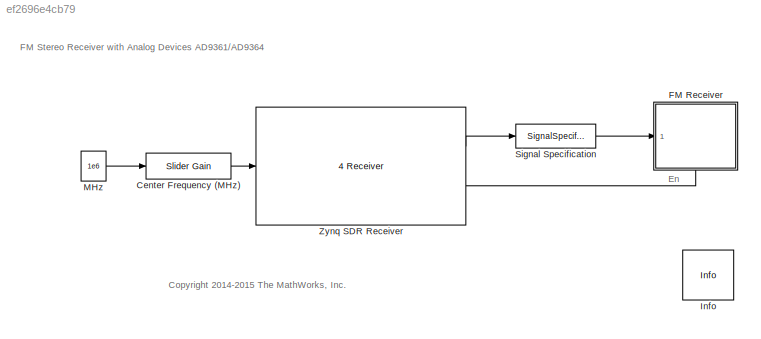
MODEL slx_ef2696e4cb79
KIND model
CONFIG AbsTol = auto
CONFIG FixedStep = auto
CONFIG InitFcn = stereoFMRxParams = getParamsFMExamplesAD9361AD9364;
CONFIG MaxStep = auto
CONFIG MinStep = auto
CONFIG PreLoadFcn = stereoFMRxParams = getParamsFMExamplesAD9361AD9364;
CONFIG RelTol = 1e-3
CONFIG SampleTimeConstraint = Unconstrained
CONFIG Solver = FixedStepDiscrete
CONFIG SolverMode = SingleTasking
CONFIG SolverName = FixedStepDiscrete
CONFIG StartTime = 0.0
CONFIG StopTime = inf
BLOCK [Reference] Center Frequency (MHz)  REF=simulink/Math
Operations/Slider
Gain
  Ports = [1, 1]
  SourceBlock = simulink/Math\nOperations/Slider\nGain
  SourceType = Slider Gain
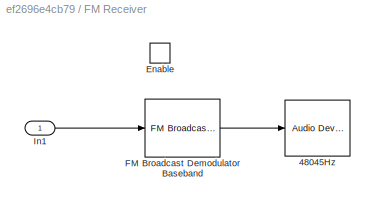
BLOCK [SubSystem] FM Receiver
  Ports = [1, 0, 1]
  RequestExecContextInheritance = off
  ShowPortLabels = none
  TreatAsAtomicUnit = on
  Variant = off
BLOCK [Reference] FM Receiver/48045Hz  REF=dspsnks4/Audio Device
Writer
  Ports = [1]
  SourceBlock = dspsnks4/Audio Device\nWriter
  SourceType = Audio Device Writer
BLOCK [EnablePort] FM Receiver/Enable
  Ports = []
BLOCK [Reference] FM Receiver/FM Broadcast Demodulator Baseband  REF=commanabbnd3/FM Broadcast
Demodulator
Baseband
  Ports = [1, 1]
  SourceBlock = commanabbnd3/FM Broadcast\nDemodulator\nBaseband
  SourceType = FM Broadcast Demodulator Baseband
BLOCK [Inport] FM Receiver/In1
  IconDisplay = Port number
BLOCK [Reference] Info  REF=sdrzblksprivate/Info
  Ports = []
  SourceBlock = sdrzblksprivate/Info
  SourceType = Info
BLOCK [Constant] MHz
  FramePeriod = -1
  SampleTime = stereoFMRxParams.RadioFrameLength/stereoFMRxParams.RadioSampleRate
  Value = 1e6
  VectorParams1D = off
BLOCK [SignalSpecification] Signal Specification
  SampleTime = stereoFMRxParams.RadioFrameLength/stereoFMRxParams.RadioSampleRate
BLOCK [Reference] Zynq SDR Receiver  REF=zc706fmc234_lib/ZC706 and 
FMCOMMS2//3//4 
Receiver
  Ports = [1, 2]
  SourceBlock = zc706fmc234_lib/ZC706 and \nFMCOMMS2//3//4 \nReceiver
  SourceType = comm.internal.SDRRxZC706FMC234SL
ANNOTATION (root): <copyright redacted>
ANNOTATION (root): En
ANNOTATION (root): FM Stereo Receiver with Analog Devices AD9361/AD9364
LINE Center Frequency (MHz):1 -> Zynq SDR Receiver:1
LINE FM Receiver/FM Broadcast Demodulator Baseband:1 -> FM Receiver/48045Hz:1
LINE FM Receiver/In1:1 -> FM Receiver/FM Broadcast Demodulator Baseband:1
LINE MHz:1 -> Center Frequency (MHz):1
LINE Signal Specification:1 -> FM Receiver:1
LINE Zynq SDR Receiver:1 -> Signal Specification:1
LINE Zynq SDR Receiver:2 -> FM Receiver:enable
